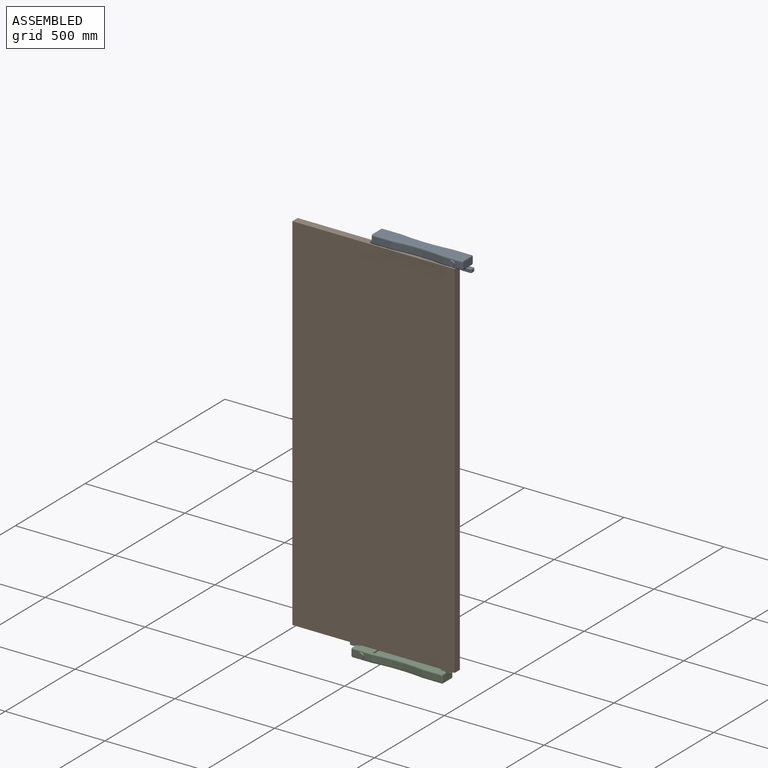
[diagram: assembled view]
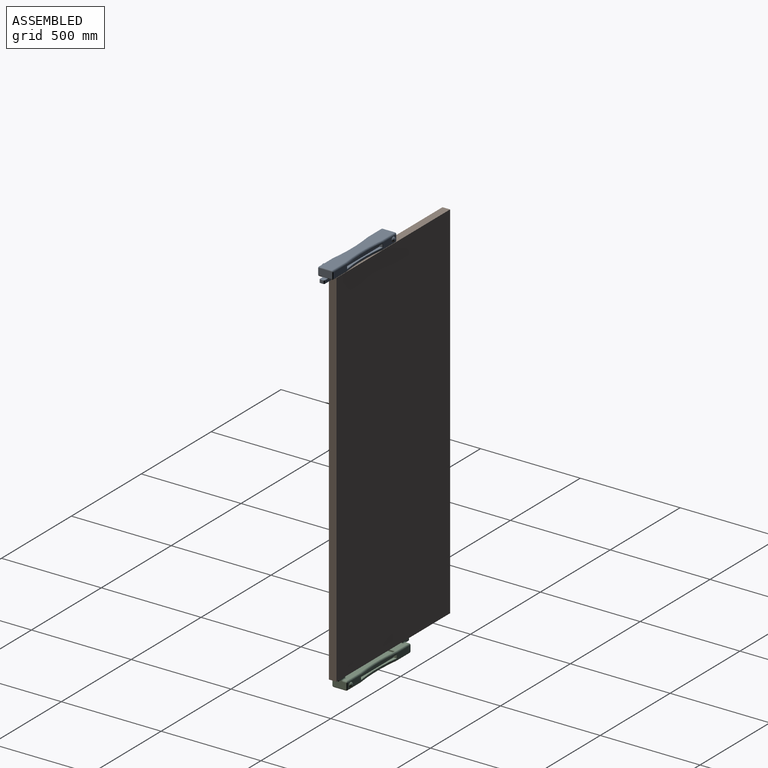
[diagram: assembled view, second angle]
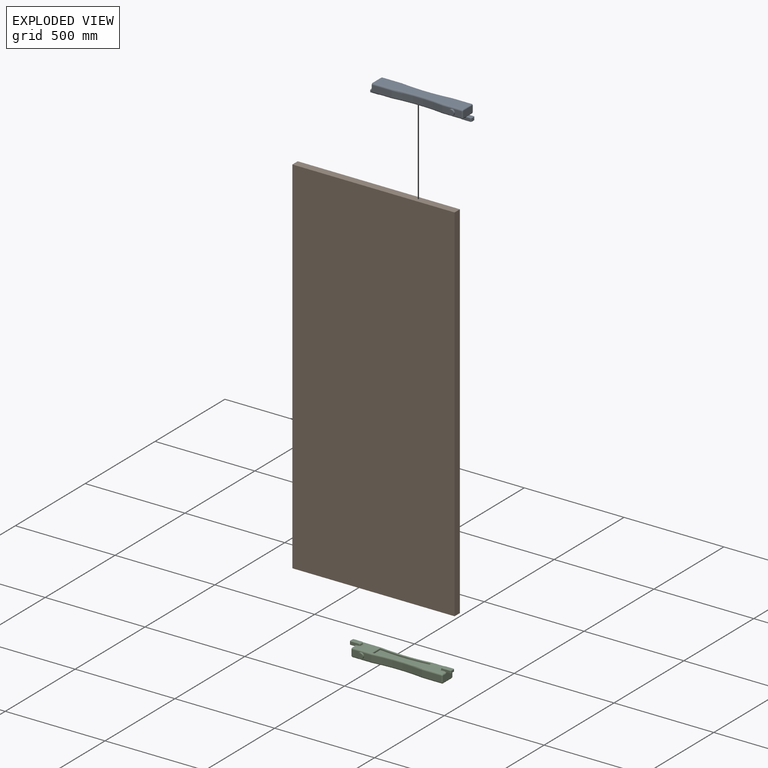
[diagram: exploded view]
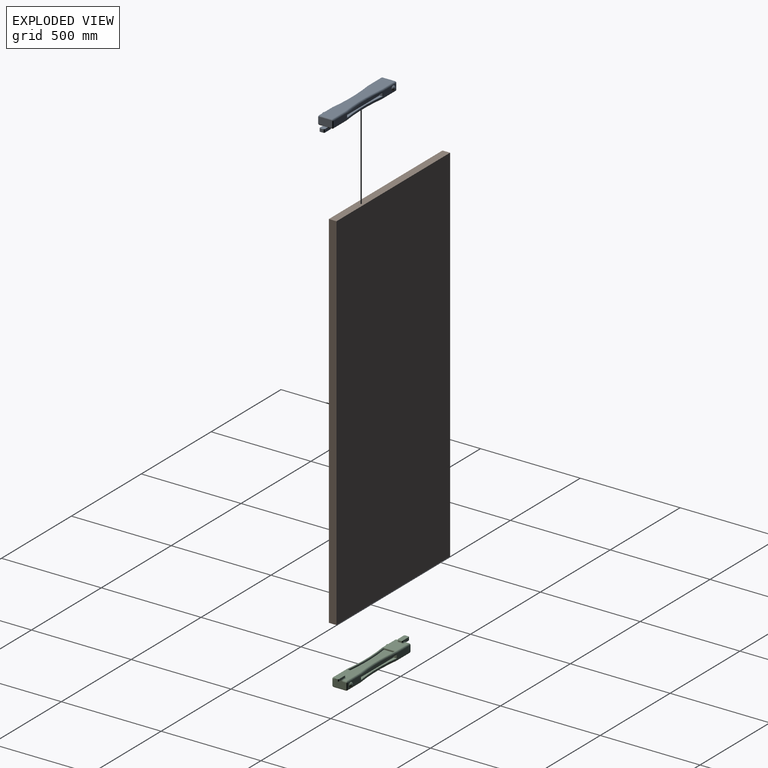
[diagram: exploded view, second angle]
ASSEMBLY  parts=3 mates=2
PART A: 104 faces, bbox 509.5x95.5x58.7 mm
  f0: plane 7.39x3.19mm, normal (0,0,1), area 1.8mm2, adj f11,f67,f93
  f1: plane 40.8x10.86mm, normal (0,-1,0), area 390.3mm2, adj f4,f31,f47,f49,f67,f92
  f2: plane 40.8x10.86mm, normal (0,1,0), area 390.3mm2, adj f5,f31,f42,f43,f58,f92
  f3: plane 15.24x10.71mm, normal (-1,0,0), area 163.2mm2, adj f4,f5,f31,f92
  f4: cylinder r=5.08mm len=10.71mm, axis (0,0,-1), area 85.4mm2, adj f1,f3,f31,f92
  f5: cylinder r=5.08mm len=10.71mm, axis (0,0,1), area 85.4mm2, adj f2,f3,f31,f92
  f6: plane 89.63x60.96mm, normal (0,0,-1), area 4695.4mm2, adj f34,f36,f38,f40,f41,f51,f53,f60
  f7: plane 89.63x60.96mm, normal (0,0,-1), area 4695.4mm2, adj f42,f44,f46,f48,f49,f55,f57,f64
  f8: cylinder r=965.2mm len=253.92mm, axis (0,0,-1), area 1549.7mm2, adj f14,f72,f78,f103
  f9: plane 96.44x29.21mm, normal (0,1,0), area 2339mm2, adj f23,f55,f73,f78,f80,f96,f99,f101
  f10: plane 66.04x36.2mm, normal (1,0,0), area 2192.5mm2, adj f18,f19,f20,f25,f50,f51,f59,f60
  f11: plane 66.04x41.37mm, normal (-1,0,0), area 2264.2mm2, adj f0,f21,f22,f23,f57,f58,f66,f67
  f12: cylinder r=965.2mm len=254mm, axis (0,0,-1), area 7440.9mm2, adj f13,f16,f63,f69
  f13: plane 96.52x29.21mm, normal (0,-1,0), area 2206.1mm2, adj f12,f20,f62,f68,f97
  f14: plane 96.52x29.21mm, normal (0,1,0), area 2819.3mm2, adj f8,f15,f18,f53,f71,f79
  f15: cylinder r=965.2mm len=253.92mm, axis (0,0,-1), area 1660.2mm2, adj f14,f54,f80,f99
  f16: plane 96.52x29.21mm, normal (0,-1,0), area 2819.3mm2, adj f12,f21,f64,f70
  f17: plane 447.04x60.96mm, normal (0,0,1), area 24395.8mm2, adj f19,f22,f68,f69,f70,f71,f72,f73
  f18: cylinder r=5.08mm len=29.21mm, axis (0,0,1), area 233.1mm2, adj f10,f14,f52,f75
  f19: cylinder r=5.08mm len=60.96mm, axis (0,-1,0), area 486.4mm2, adj f10,f17,f74,f75
  f20: cylinder r=5.08mm len=29.21mm, axis (0,0,-1), area 233.1mm2, adj f10,f13,f61,f74
  f21: cylinder r=5.08mm len=29.21mm, axis (0,0,1), area 233.1mm2, adj f11,f16,f65,f76
  f22: cylinder r=5.08mm len=60.96mm, axis (0,1,0), area 486.4mm2, adj f11,f17,f76,f77
  f23: cylinder r=5.08mm len=29.21mm, axis (0,0,-1), area 233.1mm2, adj f9,f11,f56,f77
  f24: plane 42.19x17.42mm, normal (0,1,0), area 506.1mm2, adj f25,f28,f33,f39,f41,f50
  f25: plane 26.52x25.9mm, normal (0,0,1), area 636.1mm2, adj f10,f24,f26,f27,f28,f29,f50,f59
  f26: plane 42.19x17.42mm, normal (0,-1,0), area 506.1mm2, adj f25,f29,f33,f34,f35,f59
  f27: plane 15.88x15.24mm, normal (1,0,0), area 241.9mm2, adj f25,f28,f29,f33
  f28: cylinder r=5.08mm len=15.88mm, axis (0,0,-1), area 126.7mm2, adj f24,f25,f27,f33
  f29: cylinder r=5.08mm len=15.88mm, axis (0,0,1), area 126.7mm2, adj f25,f26,f27,f33
  f30: plane 15.24x2.54mm, normal (1,0,0), area 38.7mm2, adj f43,f45,f46,f47
  f31: plane 45.72x25.4mm, normal (0,0,-1), area 1150.2mm2, adj f1,f2,f3,f4,f5,f45
  f32: plane 15.24x2.54mm, normal (-1,0,0), area 38.7mm2, adj f35,f37,f38,f39
  f33: plane 45.72x25.4mm, normal (0,0,-1), area 1150.2mm2, adj f24,f26,f27,f28,f29,f37
  f34: cylinder r=5.08mm len=12.7mm, axis (-1,0,0), area 101.3mm2, adj f6,f26,f36,f59
  f35: cylinder r=5.08mm len=7.62mm, axis (0,0,-1), area 40.5mm2, adj f26,f32,f36,f37
  f36: torus R=10.16mm, axis (0,0,1), area 86.8mm2, adj f6,f34,f35,f38
  f37: cylinder r=5.08mm len=25.4mm, axis (0,-1,0), area 162.1mm2, adj f32,f33,f35,f39
  f38: cylinder r=5.08mm len=15.24mm, axis (0,-1,0), area 121.6mm2, adj f6,f32,f36,f40
  f39: cylinder r=5.08mm len=7.62mm, axis (0,0,1), area 40.5mm2, adj f24,f32,f37,f40
  f40: torus R=10.16mm, axis (0,0,1), area 86.8mm2, adj f6,f38,f39,f41
  f41: cylinder r=5.08mm len=12.7mm, axis (-1,0,0), area 101.3mm2, adj f6,f24,f40,f50
  f42: cylinder r=5.08mm len=12.7mm, axis (-1,0,0), area 101.3mm2, adj f2,f7,f44,f58
  f43: cylinder r=5.08mm len=7.62mm, axis (0,0,1), area 40.5mm2, adj f2,f30,f44,f45
  f44: torus R=10.16mm, axis (0,0,1), area 86.8mm2, adj f7,f42,f43,f46
  f45: cylinder r=5.08mm len=25.4mm, axis (0,1,0), area 162.1mm2, adj f30,f31,f43,f47
  f46: cylinder r=5.08mm len=15.24mm, axis (0,1,0), area 121.6mm2, adj f7,f30,f44,f48
  f47: cylinder r=5.08mm len=7.62mm, axis (0,0,1), area 40.5mm2, adj f1,f30,f45,f48
  f48: torus R=10.16mm, axis (0,0,1), area 86.8mm2, adj f7,f46,f47,f49
  f49: cylinder r=5.08mm len=12.7mm, axis (-1,0,0), area 101.3mm2, adj f1,f7,f48,f67
  f50: torus R=12.7mm, axis (-1,0,0), area 84.2mm2, adj f10,f24,f25,f41,f51
  f51: cylinder r=7.62mm len=15.24mm, axis (0,1,0), area 167.2mm2, adj f6,f10,f50,f52
  f52: bspline ~8.04x7.62mm, area 42.2mm2, adj f18,f51,f53
  f53: cylinder r=7.62mm len=96.52mm, axis (-1,0,0), area 1140.1mm2, adj f6,f14,f52,f54,f90,f91
  f54: torus R=972.82mm, axis (0,0,1), area 3012.5mm2, adj f15,f53,f90,f100
  f55: cylinder r=7.62mm len=96.44mm, axis (-1,0,0), area 1139.6mm2, adj f7,f9,f56,f88,f90,f100
  f56: bspline ~8.04x7.62mm, area 42.2mm2, adj f23,f55,f57
  f57: cylinder r=7.62mm len=15.24mm, axis (0,-1,0), area 167.2mm2, adj f7,f11,f56,f58
  f58: torus R=12.7mm, axis (-1,0,0), area 97.7mm2, adj f2,f11,f42,f57,f94
  f59: torus R=12.7mm, axis (-1,0,0), area 84.2mm2, adj f10,f25,f26,f34,f60
  f60: cylinder r=7.62mm len=15.24mm, axis (0,1,0), area 167.2mm2, adj f6,f10,f59,f61
  f61: bspline ~8.04x7.62mm, area 42.9mm2, adj f20,f60,f62
  f62: cylinder r=7.62mm len=96.52mm, axis (1,0,0), area 1140.1mm2, adj f6,f13,f61,f63,f89,f91
  f63: torus R=972.82mm, axis (0,0,1), area 3013mm2, adj f12,f62,f64,f89
  f64: cylinder r=7.62mm len=96.52mm, axis (1,0,0), area 1140.1mm2, adj f7,f16,f63,f65,f88,f89
  f65: bspline ~8.04x7.62mm, area 42.9mm2, adj f21,f64,f66
  f66: cylinder r=7.62mm len=15.24mm, axis (0,-1,0), area 167.2mm2, adj f7,f11,f65,f67
  f67: torus R=12.7mm, axis (-1,0,0), area 97.7mm2, adj f0,f1,f11,f49,f66,f93
  f68: cylinder r=7.62mm len=96.52mm, axis (-1,0,0), area 1152.3mm2, adj f13,f17,f69,f74
  f69: torus R=972.82mm, axis (0,0,1), area 3051.8mm2, adj f12,f17,f68,f70
  f70: cylinder r=7.62mm len=96.52mm, axis (-1,0,0), area 1152.3mm2, adj f16,f17,f69,f76
  f71: cylinder r=7.62mm len=96.52mm, axis (1,0,0), area 1152.3mm2, adj f14,f17,f72,f75
  f72: torus R=972.82mm, axis (0,0,1), area 3051.3mm2, adj f8,f17,f71,f102
  f73: cylinder r=7.62mm len=96.44mm, axis (1,0,0), area 1151.8mm2, adj f9,f17,f77,f102
  f74: torus R=2.54mm, axis (-1,0,0), area 72.4mm2, adj f10,f19,f20,f68
  f75: torus R=2.54mm, axis (-1,0,0), area 72.4mm2, adj f10,f18,f19,f71
  f76: torus R=2.54mm, axis (-1,0,0), area 72.4mm2, adj f11,f21,f22,f70
  f77: torus R=2.54mm, axis (-1,0,0), area 72.4mm2, adj f11,f22,f23,f73
  f78: plane 256.55x16.51mm, normal (0,0,-1), area 2792.7mm2, adj f8,f9,f79,f81,f82,f101,f103
  f79: plane 16.61x16.51mm, normal (-1,0,0), area 274.2mm2, adj f14,f78,f80,f82
  f80: plane 256.55x16.51mm, normal (0,0,1), area 2792.7mm2, adj f9,f15,f79,f81,f82,f99,f101
  f81: plane 16.61x15.24mm, normal (1,0,0), area 253.1mm2, adj f78,f80,f82,f101
  f82: plane 255.28x16.61mm, normal (0,1,0), area 4238.9mm2, adj f78,f79,f80,f81
  f83: plane 54.66x5.46mm, normal (1,0,0), area 298.5mm2, adj f84,f86,f87,f88
  f84: cylinder r=975.99mm len=255.84mm, axis (0,0,-1), area 1401.2mm2, adj f83,f85,f87,f90
  f85: plane 54.66x5.46mm, normal (-1,0,0), area 298.5mm2, adj f84,f86,f87,f91
  f86: cylinder r=975.99mm len=255.84mm, axis (0,0,-1), area 1401.2mm2, adj f83,f85,f87,f89
  f87: plane 255.84x54.66mm, normal (0,0,-1), area 11110.9mm2, adj f83,f84,f85,f86
  f88: cylinder r=3.43mm len=61.83mm, axis (0,1,0), area 309.5mm2, adj f7,f55,f64,f83,f89,f90
  f89: torus R=972.57mm, axis (0,0,1), area 1373.1mm2, adj f62,f63,f64,f86,f88,f91
  f90: torus R=972.57mm, axis (0,0,1), area 1367.9mm2, adj f53,f54,f55,f84,f88,f91,f100
  f91: cylinder r=3.43mm len=61.83mm, axis (0,-1,0), area 309.5mm2, adj f6,f53,f62,f85,f89,f90
  f92: plane 30.73x26.63mm, normal (0,0,1), area 648mm2, adj f1,f2,f3,f4,f5,f11,f93,f94
  f93: bspline ~5.5x5.08mm, area 12.4mm2, adj f0,f11,f67,f92
  f94: bspline ~7.71x7.24mm, area 15.5mm2, adj f11,f58,f92
  f95: plane 1.3x1.3mm, normal (0,1,0), area 1.3mm2, adj f96
  f96: torus R=0.65mm, axis (0,-1,0), area 701.4mm2, adj f9,f95
  f97: cylinder r=13.97mm len=27.94mm, axis (0,1,0), area 780.4mm2, adj f13,f98
  f98: plane 27.94x27.94mm, normal (0,-1,0), area 613.3mm2, adj f97
  f99: cylinder r=1.27mm len=6.52mm, axis (0,0,-1), area 1.1mm2, adj f9,f15,f80,f100
  f100: bspline ~8.06x7.59mm, area 1.3mm2, adj f54,f55,f90,f99
  f101: cylinder r=1.27mm len=16.61mm, axis (0,0,-1), area 33.1mm2, adj f9,f78,f80,f81
  f102: bspline ~8.06x7.62mm, area 0.8mm2, adj f72,f73,f103
  f103: cylinder r=1.27mm len=6.09mm, axis (0,0,-1), area 1mm2, adj f8,f9,f78,f102
PART B: 6 faces, bbox 812.8x38.1x1828.8 mm
  f0: plane 812.8x38.1mm, normal (0,0,-1), area 30967.7mm2, adj f1,f3,f4,f5
  f1: plane 1828.8x38.1mm, normal (1,0,0), area 69677.3mm2, adj f0,f2,f4,f5
  f2: plane 812.8x38.1mm, normal (0,0,1), area 30967.7mm2, adj f1,f3,f4,f5
  f3: plane 1828.8x38.1mm, normal (-1,0,0), area 69677.3mm2, adj f0,f2,f4,f5
  f4: plane 1828.8x812.8mm, normal (0,1,0), area 1486448.6mm2, adj f0,f1,f2,f3
  f5: plane 1828.8x812.8mm, normal (0,-1,0), area 1486448.6mm2, adj f0,f1,f2,f3
PART C: same geometry as A
PLACE A t=(-865.18,-1.03,1733.99)mm
PLACE B t=(-461.11,18.02,-107.51)mm
PLACE C rot(axis=(0,1,0),180deg) t=(-509.58,-1.03,-120.21)mm
MATE parallel A.f31 <-> B.f2  axis (0,0,-1) through (-867.51,37.07,1721.29)mm
MATE parallel C.f33 <-> B.f0  axis (0,0,1) through (-969.11,37.07,-107.51)mm
